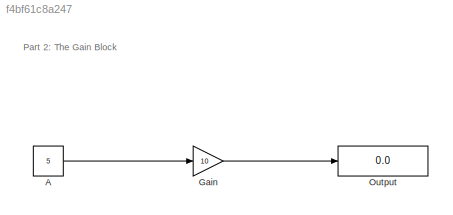
MODEL slx_f4bf61c8a247
KIND model
CONFIG AbsTol = auto
CONFIG EnableMultiTasking = off
CONFIG FixedStep = auto
CONFIG MaxStep = auto
CONFIG MinStep = auto
CONFIG RelTol = 1e-3
CONFIG SampleTimeConstraint = Unconstrained
CONFIG SolverName = VariableStepAuto
CONFIG StartTime = 0.0
CONFIG StopTime = 10.0
BLOCK [Constant] A
  Value = 5
BLOCK [Gain] Gain
  Gain = 10
BLOCK [Display] Output
  Decimation = 1
ANNOTATION (root): P art 2: The Gain Block
LINE A:1 -> Gain:1
LINE Gain:1 -> Output:1
